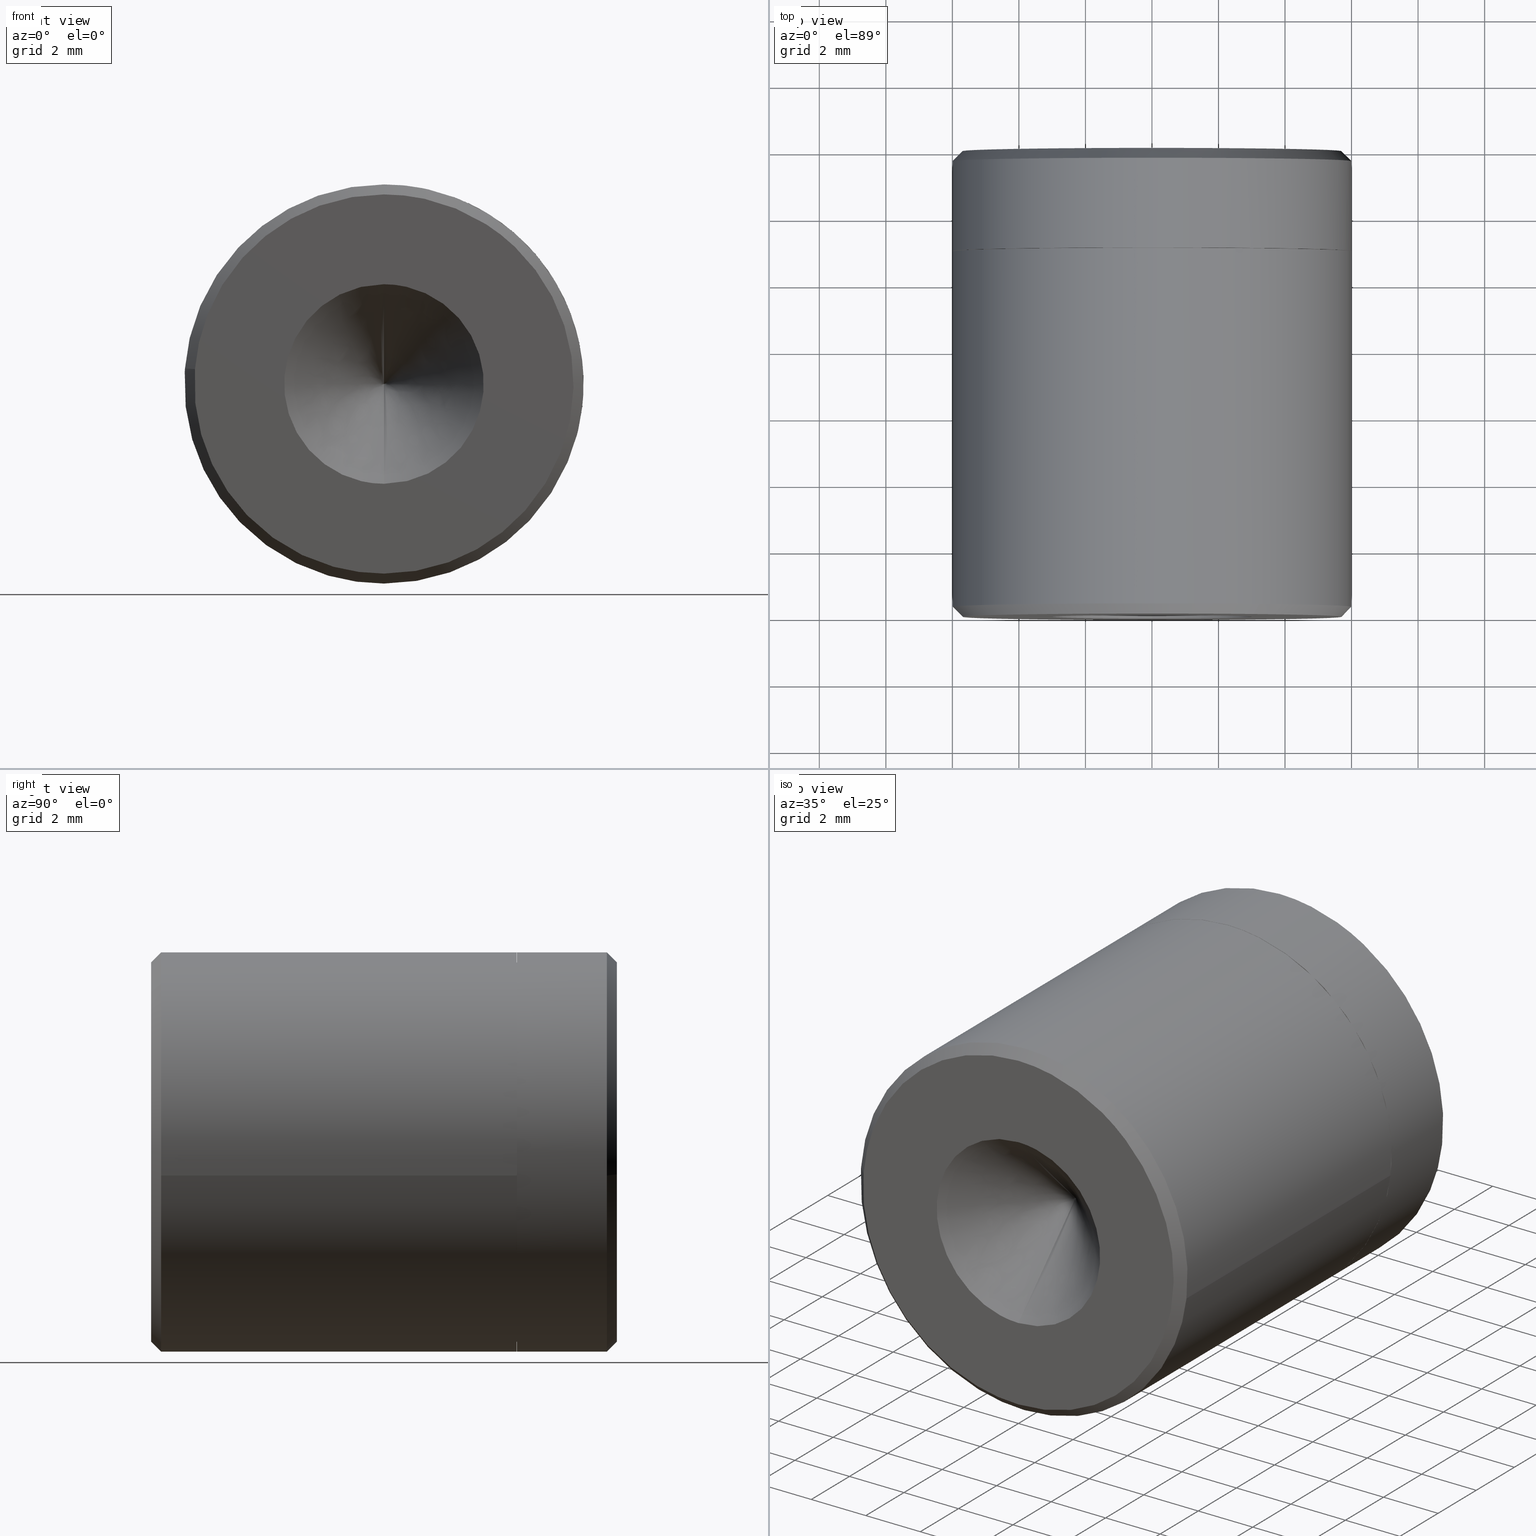
[diagram: canonical four-view strip — front | top / right | iso, engineering-drawing reading convention]
A machine part, canonical four-view strip (front | top / right | iso — engineering-drawing reading convention). The complete STEP part file that produces these views, byte-faithful:
ISO-10303-21;
HEADER;
/****************************************************************
 * Generated by software with PDE/Lib inside                    *
 * PDElib Version 4.4.1-0003, patched  Thursday August 19 11:58 *
 * International Technegroup Inc. (www.iti-oh.com)              *
 ****************************************************************/
FILE_DESCRIPTION((''),'2;1');
FILE_NAME('','2005-07-15T10:18:22',(''),(''),'','CADfix','');
FILE_SCHEMA(('AUTOMOTIVE_DESIGN'));
ENDSEC;
DATA;
#5=APPLICATION_CONTEXT('automotive design');
#6=APPLICATION_PROTOCOL_DEFINITION('Draft International Standard','automotive_design',1998,#5);
#7=PRODUCT_CONTEXT('None',#5,'mechanical');
#8=PRODUCT('body','','None',(#7));
#9=PRODUCT_RELATED_PRODUCT_CATEGORY('part','description',(#8));
#10=PRODUCT_DEFINITION_FORMATION('None','None',#8);
#11=PRODUCT_DEFINITION_CONTEXT('part definition',#5,'design');
#12=PRODUCT_DEFINITION('None','None',#10,#11);
#18=(NAMED_UNIT(*)PLANE_ANGLE_UNIT()SI_UNIT($,.RADIAN.));
#19=DIMENSIONAL_EXPONENTS(0.0,0.0,0.0,0.0,0.0,0.0,0.0);
#20=PLANE_ANGLE_MEASURE_WITH_UNIT(PLANE_ANGLE_MEASURE(0.017453292500000),#18);
#24=(CONVERSION_BASED_UNIT('DEGREE',#20)NAMED_UNIT(#19)PLANE_ANGLE_UNIT());
#28=(NAMED_UNIT(*)SI_UNIT($,.STERADIAN.)SOLID_ANGLE_UNIT());
#32=(LENGTH_UNIT()NAMED_UNIT(*)SI_UNIT(.MILLI.,.METRE.));
#34=UNCERTAINTY_MEASURE_WITH_UNIT(LENGTH_MEASURE(0.001000000000000),#32,'DISTANCE_ACCURACY_VALUE','');
#36=(GEOMETRIC_REPRESENTATION_CONTEXT(3)GLOBAL_UNCERTAINTY_ASSIGNED_CONTEXT((#34))GLOBAL_UNIT_ASSIGNED_CONTEXT((#24,#28,#32))REPRESENTATION_CONTEXT('None','None'));
#37=AXIS2_PLACEMENT_3D('',#38,#39,#40);
#38=CARTESIAN_POINT('',(0.0,0.0,0.0));
#39=DIRECTION('',(0.0,0.0,1.0));
#40=DIRECTION('',(1.0,0.0,0.0));
#41=ADVANCED_BREP_SHAPE_REPRESENTATION('',(#37,#1057),#36);
#42=PRODUCT_DEFINITION_SHAPE('','',#12);
#43=SHAPE_DEFINITION_REPRESENTATION(#42,#41);
#44=CARTESIAN_POINT('',(2.109708197967407,13.767504099999998,5.616862408803518));
#45=CARTESIAN_POINT('',(1.265936921281901,13.767504100000000,5.933785105154919));
#46=CARTESIAN_POINT('',(0.366291298257681,13.767504100000000,5.988809788665995));
#47=CARTESIAN_POINT('',(-5.622518490408318,13.767504100000002,6.355101086923678));
#48=CARTESIAN_POINT('',(-5.988809788665998,13.767504100000000,0.366291298257679));
#49=CARTESIAN_POINT('',(2.109708197967407,10.930812397499997,5.616862408803518));
#50=CARTESIAN_POINT('',(1.265936921281901,10.930812397500004,5.933785105154919));
#51=CARTESIAN_POINT('',(0.366291298257681,10.930812397500000,5.988809788665995));
#52=CARTESIAN_POINT('',(-5.622518490408318,10.930812397499999,6.355101086923678));
#53=CARTESIAN_POINT('',(-5.988809788665998,10.930812397500000,0.366291298257679));
#61=(BOUNDED_SURFACE()B_SPLINE_SURFACE(2,1,((#44,#49),(#45,#50),(#46,#51),(#47,#52),(#48,#53)),.UNSPECIFIED.,.F.,.F.,.U.)B_SPLINE_SURFACE_WITH_KNOTS((3,2,3),(2,2),(0.0,1.988225430761706,11.929352584570230),(0.0,2.836691702500005),.UNSPECIFIED.)GEOMETRIC_REPRESENTATION_ITEM()RATIONAL_B_SPLINE_SURFACE(((0.906274169979695,0.906274169979695),(0.941421356237309,0.941421356237309),(1.0,1.0),(0.707106781186548,0.707106781186548),(1.0,1.0)))REPRESENTATION_ITEM('')SURFACE());
#62=CARTESIAN_POINT('',(2.109705394561436,13.700003999997580,5.616862927662621));
#63=VERTEX_POINT('',#62);
#64=CARTESIAN_POINT('',(0.0,13.700004000000000,5.999999999999997));
#65=VERTEX_POINT('',#64);
#66=CARTESIAN_POINT('',(2.109705394561436,13.700003999997577,5.616862927662622));
#67=CARTESIAN_POINT('',(1.089642866699022,13.700004000000000,5.999999999999997));
#68=CARTESIAN_POINT('',(0.0,13.700004000000000,5.999999999999997));
#76=(BOUNDED_CURVE()B_SPLINE_CURVE(2,(#66,#67,#68),.UNSPECIFIED.,.F.,.U.)B_SPLINE_CURVE_WITH_KNOTS((3,3),(0.440284244788677,0.500000000000000),.UNSPECIFIED.)CURVE()GEOMETRIC_REPRESENTATION_ITEM()RATIONAL_B_SPLINE_CURVE((0.893499645059353,0.930038640969118,1.0))REPRESENTATION_ITEM(''));
#77=EDGE_CURVE('',#63,#65,#76,.T.);
#78=ORIENTED_EDGE('',*,*,#77,.T.);
#79=CARTESIAN_POINT('',(-5.988809289598700,13.700003999999559,0.366291267734830));
#80=VERTEX_POINT('',#79);
#81=CARTESIAN_POINT('',(0.0,13.700004000000000,5.999999999999997));
#82=CARTESIAN_POINT('',(-5.644236401428818,13.700004000000000,5.999999999999998));
#83=CARTESIAN_POINT('',(-5.988809289598700,13.700003999999563,0.366291267734830));
#91=(BOUNDED_CURVE()B_SPLINE_CURVE(2,(#81,#82,#83),.UNSPECIFIED.,.F.,.U.)B_SPLINE_CURVE_WITH_KNOTS((3,3),(0.500000000000000,0.739332962241805),.UNSPECIFIED.)CURVE()GEOMETRIC_REPRESENTATION_ITEM()RATIONAL_B_SPLINE_CURVE((1.0,0.719603993283357,0.976072041672852))REPRESENTATION_ITEM(''));
#92=EDGE_CURVE('',#65,#80,#91,.T.);
#93=ORIENTED_EDGE('',*,*,#92,.T.);
#94=CARTESIAN_POINT('',(-5.988809419119264,11.0,0.366289150076982));
#95=VERTEX_POINT('',#94);
#96=CARTESIAN_POINT('',(-5.988809289598700,13.700003999999559,0.366291267734830));
#97=CARTESIAN_POINT('',(-5.988809419119264,11.0,0.366289150076982));
#98=QUASI_UNIFORM_CURVE('',1,(#96,#97),.UNSPECIFIED.,.F.,.U.);
#99=EDGE_CURVE('',#80,#95,#98,.T.);
#100=ORIENTED_EDGE('',*,*,#99,.T.);
#101=CARTESIAN_POINT('',(0.0,11.0,5.999999999999997));
#102=VERTEX_POINT('',#101);
#103=CARTESIAN_POINT('',(0.0,11.0,5.999999999999997));
#104=CARTESIAN_POINT('',(-5.644238400978692,11.0,5.999999999999998));
#105=CARTESIAN_POINT('',(-5.988809419119264,11.000000000000002,0.366289150076982));
#113=(BOUNDED_CURVE()B_SPLINE_CURVE(2,(#103,#104,#105),.UNSPECIFIED.,.F.,.U.)B_SPLINE_CURVE_WITH_KNOTS((3,3),(0.500000000000000,0.739333023254904),.UNSPECIFIED.)CURVE()GEOMETRIC_REPRESENTATION_ITEM()RATIONAL_B_SPLINE_CURVE((1.0,0.719603921802065,0.976072172435572))REPRESENTATION_ITEM(''));
#114=EDGE_CURVE('',#102,#95,#113,.T.);
#115=ORIENTED_EDGE('',*,*,#114,.F.);
#116=CARTESIAN_POINT('',(2.109705874092362,11.0,5.616862747550018));
#117=VERTEX_POINT('',#116);
#118=CARTESIAN_POINT('',(2.109705874092362,10.999999999999998,5.616862747550018));
#119=CARTESIAN_POINT('',(1.089643131266459,11.000000000000004,5.999999999999998));
#120=CARTESIAN_POINT('',(0.0,11.0,5.999999999999997));
#128=(BOUNDED_CURVE()B_SPLINE_CURVE(2,(#118,#119,#120),.UNSPECIFIED.,.F.,.U.)B_SPLINE_CURVE_WITH_KNOTS((3,3),(0.440284231303951,0.500000000000000),.UNSPECIFIED.)CURVE()GEOMETRIC_REPRESENTATION_ITEM()RATIONAL_B_SPLINE_CURVE((0.893499628557232,0.930038625170779,1.0))REPRESENTATION_ITEM(''));
#129=EDGE_CURVE('',#117,#102,#128,.T.);
#130=ORIENTED_EDGE('',*,*,#129,.F.);
#131=CARTESIAN_POINT('',(2.109705394561436,13.700003999997580,5.616862927662621));
#132=CARTESIAN_POINT('',(2.109705874092362,11.0,5.616862747550018));
#133=QUASI_UNIFORM_CURVE('',1,(#131,#132),.UNSPECIFIED.,.F.,.U.);
#134=EDGE_CURVE('',#63,#117,#133,.T.);
#135=ORIENTED_EDGE('',*,*,#134,.F.);
#136=EDGE_LOOP('',(#78,#93,#100,#115,#130,#135));
#137=FACE_OUTER_BOUND('',#136,.T.);
#138=ADVANCED_FACE('',(#137),#61,.T.);
#139=CARTESIAN_POINT('',(-5.988809788665998,13.767504100000000,0.366291298257679));
#140=CARTESIAN_POINT('',(-6.355101086923679,13.767504100000002,-5.622518490408319));
#141=CARTESIAN_POINT('',(-0.366291298257681,13.767504100000000,-5.988809788666001));
#142=CARTESIAN_POINT('',(5.622518490408318,13.767504100000002,-6.355101086923682));
#143=CARTESIAN_POINT('',(5.988809788665998,13.767504100000000,-0.366291298257684));
#144=CARTESIAN_POINT('',(6.259424380453273,13.767504100000004,4.058218167187970));
#145=CARTESIAN_POINT('',(2.109708197967407,13.767504099999998,5.616862408803518));
#146=CARTESIAN_POINT('',(-5.988809788665998,10.930812397500000,0.366291298257679));
#147=CARTESIAN_POINT('',(-6.355101086923679,10.930812397499999,-5.622518490408319));
#148=CARTESIAN_POINT('',(-0.366291298257681,10.930812397500000,-5.988809788666001));
#149=CARTESIAN_POINT('',(5.622518490408318,10.930812397499999,-6.355101086923682));
#150=CARTESIAN_POINT('',(5.988809788665998,10.930812397500000,-0.366291298257684));
#151=CARTESIAN_POINT('',(6.259424380453273,10.930812397499999,4.058218167187970));
#152=CARTESIAN_POINT('',(2.109708197967407,10.930812397499997,5.616862408803518));
#160=(BOUNDED_SURFACE()B_SPLINE_SURFACE(2,1,((#139,#146),(#140,#147),(#141,#148),(#142,#149),(#143,#150),(#144,#151),(#145,#152)),.UNSPECIFIED.,.F.,.F.,.U.)B_SPLINE_SURFACE_WITH_KNOTS((3,2,2,3),(2,2),(0.0,9.941127153808528,19.882254307617060,27.835156030663882),(0.0,2.836691702500005),.UNSPECIFIED.)GEOMETRIC_REPRESENTATION_ITEM()RATIONAL_B_SPLINE_SURFACE(((1.0,1.0),(0.707106781186548,0.707106781186548),(1.0,1.0),(0.707106781186548,0.707106781186548),(1.0,1.0),(0.765685424949238,0.765685424949238),(0.906274169979695,0.906274169979695)))REPRESENTATION_ITEM('')SURFACE());
#161=CARTESIAN_POINT('',(5.958057158182076,13.700003999998820,-0.708205407949931));
#162=VERTEX_POINT('',#161);
#163=CARTESIAN_POINT('',(5.958057158182077,13.700003999998822,-0.708205407949931));
#164=CARTESIAN_POINT('',(6.000000000000001,13.700004000000000,-0.355344717920800));
#165=CARTESIAN_POINT('',(6.0,13.700004000000000,-2.449215E-015));
#166=CARTESIAN_POINT('',(6.0,13.700004000000007,4.155659650811663));
#167=CARTESIAN_POINT('',(2.109705394561436,13.700003999997577,5.616862927662622));
#175=(BOUNDED_CURVE()B_SPLINE_CURVE(2,(#163,#164,#165,#166,#167),.UNSPECIFIED.,.F.,.U.)B_SPLINE_CURVE_WITH_KNOTS((3,2,3),(0.229562473515120,0.250000000000000,0.440284244788677),.UNSPECIFIED.)CURVE()GEOMETRIC_REPRESENTATION_ITEM()RATIONAL_B_SPLINE_CURVE((0.956026754186858,0.976055948333033,1.0,0.777068140217430,0.893499645059353))REPRESENTATION_ITEM(''));
#176=EDGE_CURVE('',#162,#63,#175,.T.);
#177=ORIENTED_EDGE('',*,*,#176,.T.);
#178=ORIENTED_EDGE('',*,*,#134,.T.);
#179=CARTESIAN_POINT('',(0.0,11.0,-6.000000000000003));
#180=VERTEX_POINT('',#179);
#181=CARTESIAN_POINT('',(0.0,11.0,-6.000000000000003));
#182=CARTESIAN_POINT('',(6.0,11.0,-6.000000000000003));
#183=CARTESIAN_POINT('',(6.0,11.0,-2.449215E-015));
#184=CARTESIAN_POINT('',(6.0,11.0,4.155659271828293));
#185=CARTESIAN_POINT('',(2.109705874092362,10.999999999999998,5.616862747550018));
#193=(BOUNDED_CURVE()B_SPLINE_CURVE(2,(#181,#182,#183,#184,#185),.UNSPECIFIED.,.F.,.U.)B_SPLINE_CURVE_WITH_KNOTS((3,2,3),(0.0,0.250000000000000,0.440284231303951),.UNSPECIFIED.)CURVE()GEOMETRIC_REPRESENTATION_ITEM()RATIONAL_B_SPLINE_CURVE((1.0,0.707106781186548,1.0,0.777068156015769,0.893499628557232))REPRESENTATION_ITEM(''));
#194=EDGE_CURVE('',#180,#117,#193,.T.);
#195=ORIENTED_EDGE('',*,*,#194,.F.);
#196=CARTESIAN_POINT('',(-5.988809419119264,11.000000000000002,0.366289150076982));
#197=CARTESIAN_POINT('',(-5.999999999999999,10.999999999999996,0.183315517994584));
#198=CARTESIAN_POINT('',(-6.0,11.0,-2.449215E-015));
#199=CARTESIAN_POINT('',(-6.0,11.0,-6.000000000000003));
#200=CARTESIAN_POINT('',(0.0,11.0,-6.000000000000003));
#208=(BOUNDED_CURVE()B_SPLINE_CURVE(2,(#196,#197,#198,#199,#200),.UNSPECIFIED.,.F.,.U.)B_SPLINE_CURVE_WITH_KNOTS((3,2,3),(0.739333023254904,0.750000000000000,1.0),.UNSPECIFIED.)CURVE()GEOMETRIC_REPRESENTATION_ITEM()RATIONAL_B_SPLINE_CURVE((0.976072172435572,0.987502859384482,1.0,0.707106781186548,1.0))REPRESENTATION_ITEM(''));
#209=EDGE_CURVE('',#95,#180,#208,.T.);
#210=ORIENTED_EDGE('',*,*,#209,.F.);
#211=ORIENTED_EDGE('',*,*,#99,.F.);
#212=CARTESIAN_POINT('',(0.0,13.700004000000000,-6.000000000000003));
#213=VERTEX_POINT('',#212);
#214=CARTESIAN_POINT('',(-5.988809289598700,13.700003999999558,0.366291267734829));
#215=CARTESIAN_POINT('',(-6.0,13.700004000000003,0.183316579794357));
#216=CARTESIAN_POINT('',(-6.0,13.700004000000000,-2.449215E-015));
#217=CARTESIAN_POINT('',(-6.0,13.700004000000000,-6.000000000000003));
#218=CARTESIAN_POINT('',(0.0,13.700004000000000,-6.000000000000003));
#226=(BOUNDED_CURVE()B_SPLINE_CURVE(2,(#214,#215,#216,#217,#218),.UNSPECIFIED.,.F.,.U.)B_SPLINE_CURVE_WITH_KNOTS((3,2,3),(0.739332962241806,0.750000000000000,1.0),.UNSPECIFIED.)CURVE()GEOMETRIC_REPRESENTATION_ITEM()RATIONAL_B_SPLINE_CURVE((0.976072041672854,0.987502787903192,1.0,0.707106781186548,1.0))REPRESENTATION_ITEM(''));
#227=EDGE_CURVE('',#80,#213,#226,.T.);
#228=ORIENTED_EDGE('',*,*,#227,.T.);
#229=CARTESIAN_POINT('',(0.0,13.700004000000000,-6.000000000000003));
#230=CARTESIAN_POINT('',(5.329047155691565,13.700004000000007,-6.000000000000003));
#231=CARTESIAN_POINT('',(5.958057158182076,13.700003999998819,-0.708205407949931));
#239=(BOUNDED_CURVE()B_SPLINE_CURVE(2,(#229,#230,#231),.UNSPECIFIED.,.F.,.U.)B_SPLINE_CURVE_WITH_KNOTS((3,3),(0.0,0.229562473515120),.UNSPECIFIED.)CURVE()GEOMETRIC_REPRESENTATION_ITEM()RATIONAL_B_SPLINE_CURVE((1.0,0.731050832853514,0.956026754186859))REPRESENTATION_ITEM(''));
#240=EDGE_CURVE('',#213,#162,#239,.T.);
#241=ORIENTED_EDGE('',*,*,#240,.T.);
#242=EDGE_LOOP('',(#177,#178,#195,#210,#211,#228,#241));
#243=FACE_OUTER_BOUND('',#242,.T.);
#244=ADVANCED_FACE('',(#243),#160,.T.);
#245=CARTESIAN_POINT('',(5.652705710990393,14.007499900000003,-0.671909759798508));
#246=CARTESIAN_POINT('',(5.671935479643869,14.007499900000006,-0.510131750916592));
#247=CARTESIAN_POINT('',(5.681881316928295,14.007499899999999,-0.347518748727422));
#248=CARTESIAN_POINT('',(6.029400065655715,14.007499900000003,5.334362568200873));
#249=CARTESIAN_POINT('',(0.347518748727420,14.007499899999999,5.681881316928292));
#250=CARTESIAN_POINT('',(-5.334362568200875,14.007499900000003,6.029400065655713));
#251=CARTESIAN_POINT('',(-5.681881316928295,14.007499899999999,0.347518748727417));
#252=CARTESIAN_POINT('',(5.965690944361788,13.692316602499998,-0.709112799144104));
#253=CARTESIAN_POINT('',(5.985985448017829,13.692316602499995,-0.538377287350650));
#254=CARTESIAN_POINT('',(5.996481977371273,13.692316602500000,-0.366760549421187));
#255=CARTESIAN_POINT('',(6.363242526792458,13.692316602499998,5.629721427950086));
#256=CARTESIAN_POINT('',(0.366760549421185,13.692316602500000,5.996481977371270));
#257=CARTESIAN_POINT('',(-5.629721427950088,13.692316602499998,6.363242526792456));
#258=CARTESIAN_POINT('',(-5.996481977371273,13.692316602500000,0.366760549421183));
#266=(BOUNDED_SURFACE()B_SPLINE_SURFACE(2,1,((#245,#252),(#246,#253),(#247,#254),(#248,#255),(#249,#256),(#250,#257),(#251,#258)),.UNSPECIFIED.,.F.,.F.,.U.)B_SPLINE_SURFACE_WITH_KNOTS((3,2,2,3),(2,2),(0.0,0.398154504258166,10.352017110712310,20.305879717166459),(0.0,0.445740208493775),.UNSPECIFIED.)GEOMETRIC_REPRESENTATION_ITEM()RATIONAL_B_SPLINE_SURFACE(((0.977505800795127,0.977505800795127),(0.988284271247462,0.988284271247462),(1.0,1.0),(0.707106781186548,0.707106781186548),(1.0,1.0),(0.707106781186548,0.707106781186548),(1.0,1.0)))REPRESENTATION_ITEM('')SURFACE());
#267=ORIENTED_EDGE('',*,*,#176,.F.);
#268=CARTESIAN_POINT('',(5.660153307263389,13.999999999999719,-0.672795019511462));
#269=VERTEX_POINT('',#268);
#270=CARTESIAN_POINT('',(5.660153307263389,13.999999999999719,-0.672795019511462));
#271=CARTESIAN_POINT('',(5.958057158182076,13.700003999998820,-0.708205407949931));
#272=QUASI_UNIFORM_CURVE('',1,(#270,#271),.UNSPECIFIED.,.F.,.U.);
#273=EDGE_CURVE('',#269,#162,#272,.T.);
#274=ORIENTED_EDGE('',*,*,#273,.F.);
#275=CARTESIAN_POINT('',(0.0,14.0,5.699998999999997));
#276=VERTEX_POINT('',#275);
#277=CARTESIAN_POINT('',(5.660153307263389,13.999999999999725,-0.672795019511462));
#278=CARTESIAN_POINT('',(5.699999000000000,14.000000000000002,-0.337577422793932));
#279=CARTESIAN_POINT('',(5.699999000000000,14.0,-2.449215E-015));
#280=CARTESIAN_POINT('',(5.699999000000000,13.999999999999998,5.699998999999997));
#281=CARTESIAN_POINT('',(0.0,14.0,5.699998999999997));
#289=(BOUNDED_CURVE()B_SPLINE_CURVE(2,(#277,#278,#279,#280,#281),.UNSPECIFIED.,.F.,.U.)B_SPLINE_CURVE_WITH_KNOTS((3,2,3),(0.229562473515517,0.250000000000000,0.500000000000000),.UNSPECIFIED.)CURVE()GEOMETRIC_REPRESENTATION_ITEM()RATIONAL_B_SPLINE_CURVE((0.956026754187635,0.976055948333498,1.0,0.707106781186548,1.0))REPRESENTATION_ITEM(''));
#290=EDGE_CURVE('',#269,#276,#289,.T.);
#291=ORIENTED_EDGE('',*,*,#290,.T.);
#292=CARTESIAN_POINT('',(-5.689367352869963,13.999999999999771,0.347976614301856));
#293=VERTEX_POINT('',#292);
#294=CARTESIAN_POINT('',(0.0,14.0,5.699998999999997));
#295=CARTESIAN_POINT('',(-5.362023640653177,13.999999999999993,5.699998999999997));
#296=CARTESIAN_POINT('',(-5.689367352869963,13.999999999999771,0.347976614301856));
#304=(BOUNDED_CURVE()B_SPLINE_CURVE(2,(#294,#295,#296),.UNSPECIFIED.,.F.,.U.)B_SPLINE_CURVE_WITH_KNOTS((3,3),(0.500000000000000,0.739332962241865),.UNSPECIFIED.)CURVE()GEOMETRIC_REPRESENTATION_ITEM()RATIONAL_B_SPLINE_CURVE((1.0,0.719603993283287,0.976072041672980))REPRESENTATION_ITEM(''));
#305=EDGE_CURVE('',#276,#293,#304,.T.);
#306=ORIENTED_EDGE('',*,*,#305,.T.);
#307=CARTESIAN_POINT('',(-5.689367352869963,13.999999999999771,0.347976614301856));
#308=CARTESIAN_POINT('',(-5.988809289598700,13.700003999999559,0.366291267734830));
#309=QUASI_UNIFORM_CURVE('',1,(#307,#308),.UNSPECIFIED.,.F.,.U.);
#310=EDGE_CURVE('',#293,#80,#309,.T.);
#311=ORIENTED_EDGE('',*,*,#310,.T.);
#312=ORIENTED_EDGE('',*,*,#92,.F.);
#313=ORIENTED_EDGE('',*,*,#77,.F.);
#314=EDGE_LOOP('',(#267,#274,#291,#306,#311,#312,#313));
#315=FACE_OUTER_BOUND('',#314,.T.);
#316=ADVANCED_FACE('',(#315),#266,.T.);
#317=CARTESIAN_POINT('',(-5.681881316928295,14.007499899999999,0.347518748727417));
#318=CARTESIAN_POINT('',(-6.029400065655715,14.007499900000003,-5.334362568200878));
#319=CARTESIAN_POINT('',(-0.347518748727420,14.007499899999999,-5.681881316928298));
#320=CARTESIAN_POINT('',(5.018185418021771,14.007499900000012,-6.010061842719050));
#321=CARTESIAN_POINT('',(5.652705710990393,14.007499900000003,-0.671909759798508));
#322=CARTESIAN_POINT('',(-5.996481977371273,13.692316602500000,0.366760549421183));
#323=CARTESIAN_POINT('',(-6.363242526792458,13.692316602499998,-5.629721427950091));
#324=CARTESIAN_POINT('',(-0.366760549421185,13.692316602500000,-5.996481977371276));
#325=CARTESIAN_POINT('',(5.296037833212385,13.692316602499996,-6.342833563837070));
#326=CARTESIAN_POINT('',(5.965690944361788,13.692316602499998,-0.709112799144104));
#334=(BOUNDED_SURFACE()B_SPLINE_SURFACE(2,1,((#317,#322),(#318,#323),(#319,#324),(#320,#325),(#321,#326)),.UNSPECIFIED.,.F.,.F.,.U.)B_SPLINE_SURFACE_WITH_KNOTS((3,2,3),(2,2),(0.0,9.953862606454145,19.509570708650120),(0.0,0.445740208493775),.UNSPECIFIED.)GEOMETRIC_REPRESENTATION_ITEM()RATIONAL_B_SPLINE_SURFACE(((1.0,1.0),(0.707106781186548,0.707106781186548),(1.0,1.0),(0.718822509939086,0.718822509939086),(0.977505800795127,0.977505800795127)))REPRESENTATION_ITEM('')SURFACE());
#335=ORIENTED_EDGE('',*,*,#240,.F.);
#336=ORIENTED_EDGE('',*,*,#227,.F.);
#337=ORIENTED_EDGE('',*,*,#310,.F.);
#338=CARTESIAN_POINT('',(0.0,14.0,-5.699999000000003));
#339=VERTEX_POINT('',#338);
#340=CARTESIAN_POINT('',(-5.689367352869963,13.999999999999774,0.347976614301856));
#341=CARTESIAN_POINT('',(-5.699999000000000,14.000000000000005,0.174150720250896));
#342=CARTESIAN_POINT('',(-5.699999000000000,14.0,-2.449215E-015));
#343=CARTESIAN_POINT('',(-5.699999000000000,13.999999999999998,-5.699999000000003));
#344=CARTESIAN_POINT('',(0.0,14.0,-5.699999000000003));
#352=(BOUNDED_CURVE()B_SPLINE_CURVE(2,(#340,#341,#342,#343,#344),.UNSPECIFIED.,.F.,.U.)B_SPLINE_CURVE_WITH_KNOTS((3,2,3),(0.739332962241865,0.750000000000000,1.0),.UNSPECIFIED.)CURVE()GEOMETRIC_REPRESENTATION_ITEM()RATIONAL_B_SPLINE_CURVE((0.976072041672981,0.987502787903261,1.0,0.707106781186548,1.0))REPRESENTATION_ITEM(''));
#353=EDGE_CURVE('',#293,#339,#352,.T.);
#354=ORIENTED_EDGE('',*,*,#353,.T.);
#355=CARTESIAN_POINT('',(0.0,14.0,-5.699999000000003));
#356=CARTESIAN_POINT('',(5.062593909744418,14.000000000000005,-5.699999000000002));
#357=CARTESIAN_POINT('',(5.660153307263389,13.999999999999721,-0.672795019511462));
#365=(BOUNDED_CURVE()B_SPLINE_CURVE(2,(#355,#356,#357),.UNSPECIFIED.,.F.,.U.)B_SPLINE_CURVE_WITH_KNOTS((3,3),(0.0,0.229562473515517),.UNSPECIFIED.)CURVE()GEOMETRIC_REPRESENTATION_ITEM()RATIONAL_B_SPLINE_CURVE((1.0,0.731050832853050,0.956026754187636))REPRESENTATION_ITEM(''));
#366=EDGE_CURVE('',#339,#269,#365,.T.);
#367=ORIENTED_EDGE('',*,*,#366,.T.);
#368=ORIENTED_EDGE('',*,*,#273,.T.);
#369=EDGE_LOOP('',(#335,#336,#337,#354,#367,#368));
#370=FACE_OUTER_BOUND('',#369,.T.);
#371=ADVANCED_FACE('',(#370),#334,.T.);
#372=CARTESIAN_POINT('',(5.660155293282426,11.000250000000007,-0.672795255577760));
#373=CARTESIAN_POINT('',(5.679410404444667,11.000249999999998,-0.510804042851204));
#374=CARTESIAN_POINT('',(5.689369349139438,11.000249999999999,-0.347976736397227));
#375=CARTESIAN_POINT('',(6.037346085536663,11.000250000000003,5.341392612742212));
#376=CARTESIAN_POINT('',(0.347976736397224,11.000249999999999,5.689369349139436));
#377=CARTESIAN_POINT('',(-5.341392612742215,11.000250000000003,6.037346085536661));
#378=CARTESIAN_POINT('',(-5.689369349139438,11.000249999999999,0.347976736397222));
#379=CARTESIAN_POINT('',(5.660155293282426,10.989743750000001,-0.672795255577760));
#380=CARTESIAN_POINT('',(5.679410404444667,10.989743750000001,-0.510804042851204));
#381=CARTESIAN_POINT('',(5.689369349139438,10.989743750000001,-0.347976736397227));
#382=CARTESIAN_POINT('',(6.037346085536663,10.989743749999999,5.341392612742212));
#383=CARTESIAN_POINT('',(0.347976736397224,10.989743750000001,5.689369349139436));
#384=CARTESIAN_POINT('',(-5.341392612742215,10.989743749999999,6.037346085536661));
#385=CARTESIAN_POINT('',(-5.689369349139438,10.989743750000001,0.347976736397222));
#393=(BOUNDED_SURFACE()B_SPLINE_SURFACE(2,1,((#372,#379),(#373,#380),(#374,#381),(#375,#382),(#376,#383),(#377,#384),(#378,#385)),.UNSPECIFIED.,.F.,.F.,.U.)B_SPLINE_SURFACE_WITH_KNOTS((3,2,2,3),(2,2),(0.0,0.377762835158433,9.821833714119247,19.265904593080059),(0.0,0.010506250000003),.UNSPECIFIED.)GEOMETRIC_REPRESENTATION_ITEM()RATIONAL_B_SPLINE_SURFACE(((0.977505800795127,0.977505800795127),(0.988284271247462,0.988284271247462),(1.0,1.0),(0.707106781186548,0.707106781186548),(1.0,1.0),(0.707106781186548,0.707106781186548),(1.0,1.0)))REPRESENTATION_ITEM('')SURFACE());
#394=CARTESIAN_POINT('',(5.660155504204231,11.000000000001920,-0.672793481110175));
#395=VERTEX_POINT('',#394);
#396=CARTESIAN_POINT('',(0.0,11.0,5.700000999999997));
#397=VERTEX_POINT('',#396);
#398=CARTESIAN_POINT('',(5.660155504204231,11.000000000001924,-0.672793481110175));
#399=CARTESIAN_POINT('',(5.700000999999999,10.999999999999998,-0.337576644626536));
#400=CARTESIAN_POINT('',(5.700000999999999,11.0,-2.449215E-015));
#401=CARTESIAN_POINT('',(5.700000999999999,11.0,5.700000999999997));
#402=CARTESIAN_POINT('',(0.0,11.0,5.700000999999997));
#410=(BOUNDED_CURVE()B_SPLINE_CURVE(2,(#398,#399,#400,#401,#402),.UNSPECIFIED.,.F.,.U.)B_SPLINE_CURVE_WITH_KNOTS((3,2,3),(0.229562526498430,0.250000000000000,0.500000000000000),.UNSPECIFIED.)CURVE()GEOMETRIC_REPRESENTATION_ITEM()RATIONAL_B_SPLINE_CURVE((0.956026858036340,0.976056010406842,1.0,0.707106781186548,1.0))REPRESENTATION_ITEM(''));
#411=EDGE_CURVE('',#395,#397,#410,.T.);
#412=ORIENTED_EDGE('',*,*,#411,.T.);
#413=CARTESIAN_POINT('',(-5.689369448078955,11.000000000001490,0.347975118742901));
#414=VERTEX_POINT('',#413);
#415=CARTESIAN_POINT('',(0.0,11.0,5.700000999999997));
#416=CARTESIAN_POINT('',(-5.362027049498555,11.000000000000002,5.700000999999999));
#417=CARTESIAN_POINT('',(-5.689369448078955,11.000000000001483,0.347975118742901));
#425=(BOUNDED_CURVE()B_SPLINE_CURVE(2,(#415,#416,#417),.UNSPECIFIED.,.F.,.U.)B_SPLINE_CURVE_WITH_KNOTS((3,3),(0.500000000000000,0.739333011302076),.UNSPECIFIED.)CURVE()GEOMETRIC_REPRESENTATION_ITEM()RATIONAL_B_SPLINE_CURVE((1.0,0.719603935805675,0.976072146818373))REPRESENTATION_ITEM(''));
#426=EDGE_CURVE('',#397,#414,#425,.T.);
#427=ORIENTED_EDGE('',*,*,#426,.T.);
#428=CARTESIAN_POINT('',(-5.689369446885911,10.990000000000000,0.347975138249162));
#429=VERTEX_POINT('',#428);
#430=CARTESIAN_POINT('',(-5.689369448078955,11.000000000001490,0.347975118742901));
#431=CARTESIAN_POINT('',(-5.689369446885911,10.990000000000000,0.347975138249162));
#432=QUASI_UNIFORM_CURVE('',1,(#430,#431),.UNSPECIFIED.,.F.,.U.);
#433=EDGE_CURVE('',#414,#429,#432,.T.);
#434=ORIENTED_EDGE('',*,*,#433,.T.);
#435=CARTESIAN_POINT('',(0.0,10.990000000000000,5.700000999999997));
#436=VERTEX_POINT('',#435);
#437=CARTESIAN_POINT('',(0.0,10.990000000000000,5.700000999999997));
#438=CARTESIAN_POINT('',(-5.362027031080247,10.990000000000000,5.700000999999996));
#439=CARTESIAN_POINT('',(-5.689369446885911,10.990000000000000,0.347975138249162));
#447=(BOUNDED_CURVE()B_SPLINE_CURVE(2,(#437,#438,#439),.UNSPECIFIED.,.F.,.U.)B_SPLINE_CURVE_WITH_KNOTS((3,3),(0.500000000000000,0.739333010710491),.UNSPECIFIED.)CURVE()GEOMETRIC_REPRESENTATION_ITEM()RATIONAL_B_SPLINE_CURVE((1.0,0.719603936498759,0.976072145550494))REPRESENTATION_ITEM(''));
#448=EDGE_CURVE('',#436,#429,#447,.T.);
#449=ORIENTED_EDGE('',*,*,#448,.F.);
#450=CARTESIAN_POINT('',(5.660155501661102,10.990000000000000,-0.672793502505368));
#451=VERTEX_POINT('',#450);
#452=CARTESIAN_POINT('',(5.660155501661102,10.990000000000004,-0.672793502505368));
#453=CARTESIAN_POINT('',(5.700000999999999,10.990000000000004,-0.337576655437225));
#454=CARTESIAN_POINT('',(5.700000999999999,10.990000000000000,-2.449215E-015));
#455=CARTESIAN_POINT('',(5.700000999999999,10.990000000000000,5.700000999999997));
#456=CARTESIAN_POINT('',(0.0,10.990000000000000,5.700000999999997));
#464=(BOUNDED_CURVE()B_SPLINE_CURVE(2,(#452,#453,#454,#455,#456),.UNSPECIFIED.,.F.,.U.)B_SPLINE_CURVE_WITH_KNOTS((3,2,3),(0.229562525859603,0.250000000000000,0.500000000000000),.UNSPECIFIED.)CURVE()GEOMETRIC_REPRESENTATION_ITEM()RATIONAL_B_SPLINE_CURVE((0.956026856784213,0.976056009658410,1.0,0.707106781186548,1.0))REPRESENTATION_ITEM(''));
#465=EDGE_CURVE('',#451,#436,#464,.T.);
#466=ORIENTED_EDGE('',*,*,#465,.F.);
#467=CARTESIAN_POINT('',(5.660155504204231,11.000000000001920,-0.672793481110175));
#468=CARTESIAN_POINT('',(5.660155501661102,10.990000000000000,-0.672793502505368));
#469=QUASI_UNIFORM_CURVE('',1,(#467,#468),.UNSPECIFIED.,.F.,.U.);
#470=EDGE_CURVE('',#395,#451,#469,.T.);
#471=ORIENTED_EDGE('',*,*,#470,.F.);
#472=EDGE_LOOP('',(#412,#427,#434,#449,#466,#471));
#473=FACE_OUTER_BOUND('',#472,.T.);
#474=ADVANCED_FACE('',(#473),#393,.T.);
#475=CARTESIAN_POINT('',(-5.689369349139438,11.000249999999999,0.347976736397222));
#476=CARTESIAN_POINT('',(-6.037346085536663,11.000250000000003,-5.341392612742216));
#477=CARTESIAN_POINT('',(-0.347976736397224,11.000249999999999,-5.689369349139441));
#478=CARTESIAN_POINT('',(5.024798779328647,11.000250000000001,-6.017982377161605));
#479=CARTESIAN_POINT('',(5.660155293282426,11.000250000000007,-0.672795255577760));
#480=CARTESIAN_POINT('',(-5.689369349139438,10.989743750000001,0.347976736397222));
#481=CARTESIAN_POINT('',(-6.037346085536663,10.989743749999999,-5.341392612742216));
#482=CARTESIAN_POINT('',(-0.347976736397224,10.989743750000001,-5.689369349139441));
#483=CARTESIAN_POINT('',(5.024798779328647,10.989743749999999,-6.017982377161605));
#484=CARTESIAN_POINT('',(5.660155293282426,10.989743750000001,-0.672795255577760));
#492=(BOUNDED_SURFACE()B_SPLINE_SURFACE(2,1,((#475,#480),(#476,#481),(#477,#482),(#478,#483),(#479,#484)),.UNSPECIFIED.,.F.,.F.,.U.)B_SPLINE_SURFACE_WITH_KNOTS((3,2,3),(2,2),(0.0,9.444070878960813,18.510378922763191),(0.0,0.010506250000003),.UNSPECIFIED.)GEOMETRIC_REPRESENTATION_ITEM()RATIONAL_B_SPLINE_SURFACE(((1.0,1.0),(0.707106781186548,0.707106781186548),(1.0,1.0),(0.718822509939086,0.718822509939086),(0.977505800795127,0.977505800795127)))REPRESENTATION_ITEM('')SURFACE());
#493=CARTESIAN_POINT('',(0.0,11.0,-5.700001000000002));
#494=VERTEX_POINT('',#493);
#495=CARTESIAN_POINT('',(0.0,11.0,-5.700001000000002));
#496=CARTESIAN_POINT('',(5.062597284402099,11.0,-5.700001000000001));
#497=CARTESIAN_POINT('',(5.660155504204231,11.000000000001924,-0.672793481110175));
#505=(BOUNDED_CURVE()B_SPLINE_CURVE(2,(#495,#496,#497),.UNSPECIFIED.,.F.,.U.)B_SPLINE_CURVE_WITH_KNOTS((3,3),(0.0,0.229562526498430),.UNSPECIFIED.)CURVE()GEOMETRIC_REPRESENTATION_ITEM()RATIONAL_B_SPLINE_CURVE((1.0,0.731050770779706,0.956026858036340))REPRESENTATION_ITEM(''));
#506=EDGE_CURVE('',#494,#395,#505,.T.);
#507=ORIENTED_EDGE('',*,*,#506,.T.);
#508=ORIENTED_EDGE('',*,*,#470,.T.);
#509=CARTESIAN_POINT('',(0.0,10.990000000000000,-5.700001000000002));
#510=VERTEX_POINT('',#509);
#511=CARTESIAN_POINT('',(0.0,10.990000000000000,-5.700001000000002));
#512=CARTESIAN_POINT('',(5.062597265130944,10.990000000000000,-5.700001000000002));
#513=CARTESIAN_POINT('',(5.660155501661102,10.990000000000004,-0.672793502505368));
#521=(BOUNDED_CURVE()B_SPLINE_CURVE(2,(#511,#512,#513),.UNSPECIFIED.,.F.,.U.)B_SPLINE_CURVE_WITH_KNOTS((3,3),(0.0,0.229562525859603),.UNSPECIFIED.)CURVE()GEOMETRIC_REPRESENTATION_ITEM()RATIONAL_B_SPLINE_CURVE((1.0,0.731050771528137,0.956026856784213))REPRESENTATION_ITEM(''));
#522=EDGE_CURVE('',#510,#451,#521,.T.);
#523=ORIENTED_EDGE('',*,*,#522,.F.);
#524=CARTESIAN_POINT('',(-5.689369446885911,10.990000000000000,0.347975138249162));
#525=CARTESIAN_POINT('',(-5.700000999999999,10.989999999999997,0.174149980040180));
#526=CARTESIAN_POINT('',(-5.700000999999999,10.990000000000000,-2.449215E-015));
#527=CARTESIAN_POINT('',(-5.700000999999999,10.990000000000000,-5.700001000000002));
#528=CARTESIAN_POINT('',(0.0,10.990000000000000,-5.700001000000002));
#536=(BOUNDED_CURVE()B_SPLINE_CURVE(2,(#524,#525,#526,#527,#528),.UNSPECIFIED.,.F.,.U.)B_SPLINE_CURVE_WITH_KNOTS((3,2,3),(0.739333010710491,0.750000000000000,1.0),.UNSPECIFIED.)CURVE()GEOMETRIC_REPRESENTATION_ITEM()RATIONAL_B_SPLINE_CURVE((0.976072145550494,0.987502844687788,1.0,0.707106781186548,1.0))REPRESENTATION_ITEM(''));
#537=EDGE_CURVE('',#429,#510,#536,.T.);
#538=ORIENTED_EDGE('',*,*,#537,.F.);
#539=ORIENTED_EDGE('',*,*,#433,.F.);
#540=CARTESIAN_POINT('',(-5.689369448078955,11.000000000001483,0.347975118742901));
#541=CARTESIAN_POINT('',(-5.700000999999999,11.0,0.174149970259702));
#542=CARTESIAN_POINT('',(-5.700000999999999,11.0,-2.449215E-015));
#543=CARTESIAN_POINT('',(-5.700000999999999,11.0,-5.700001000000002));
#544=CARTESIAN_POINT('',(0.0,11.0,-5.700001000000002));
#552=(BOUNDED_CURVE()B_SPLINE_CURVE(2,(#540,#541,#542,#543,#544),.UNSPECIFIED.,.F.,.U.)B_SPLINE_CURVE_WITH_KNOTS((3,2,3),(0.739333011302076,0.750000000000000,1.0),.UNSPECIFIED.)CURVE()GEOMETRIC_REPRESENTATION_ITEM()RATIONAL_B_SPLINE_CURVE((0.976072146818373,0.987502845380873,1.0,0.707106781186548,1.0))REPRESENTATION_ITEM(''));
#553=EDGE_CURVE('',#414,#494,#552,.T.);
#554=ORIENTED_EDGE('',*,*,#553,.T.);
#555=EDGE_LOOP('',(#507,#508,#523,#538,#539,#554));
#556=FACE_OUTER_BOUND('',#555,.T.);
#557=ADVANCED_FACE('',(#556),#492,.T.);
#558=CARTESIAN_POINT('',(3.061716166097038,-0.007499875000003,4.799006300124637));
#559=CARTESIAN_POINT('',(5.943115722253526,-0.007499875000003,2.960703316058953));
#560=CARTESIAN_POINT('',(5.674952894270231,-0.007499875000003,-0.446628478928382));
#561=CARTESIAN_POINT('',(5.228324415341852,-0.007499875000003,-6.121581373198612));
#562=CARTESIAN_POINT('',(-0.446628478928379,-0.007499875000003,-5.674952894270233));
#563=CARTESIAN_POINT('',(-6.121581373198610,-0.007499875000003,-5.228324415341854));
#564=CARTESIAN_POINT('',(-5.674952894270231,-0.007499875000003,0.446628478928377));
#565=CARTESIAN_POINT('',(3.231240578135852,0.307682371875112,5.064722871245033));
#566=CARTESIAN_POINT('',(6.272180581253172,0.307682371875112,3.124634739367886));
#567=CARTESIAN_POINT('',(5.989169823782511,0.307682371875112,-0.471357887594189));
#568=CARTESIAN_POINT('',(5.517811936188325,0.307682371875112,-6.460527711376701));
#569=CARTESIAN_POINT('',(-0.471357887594187,0.307682371875112,-5.989169823782514));
#570=CARTESIAN_POINT('',(-6.460527711376698,0.307682371875112,-5.517811936188327));
#571=CARTESIAN_POINT('',(-5.989169823782511,0.307682371875112,0.471357887594184));
#579=(BOUNDED_SURFACE()B_SPLINE_SURFACE(2,1,((#558,#565),(#559,#566),(#560,#567),(#561,#568),(#562,#569),(#563,#570),(#564,#571)),.UNSPECIFIED.,.F.,.F.,.U.)B_SPLINE_SURFACE_WITH_KNOTS((3,2,2,3),(2,2),(0.0,6.768628825710591,16.722494745873231,26.676360666035858),(0.0,0.445739465596589),.UNSPECIFIED.)GEOMETRIC_REPRESENTATION_ITEM()RATIONAL_B_SPLINE_SURFACE(((0.872532871172386,0.872532871172386),(0.800832611206852,0.800832611206852),(1.0,1.0),(0.707106781186548,0.707106781186548),(1.0,1.0),(0.707106781186548,0.707106781186548),(1.0,1.0)))REPRESENTATION_ITEM('')SURFACE());
#580=CARTESIAN_POINT('',(5.958059093062108,0.299995000000109,-0.708201838156283));
#581=VERTEX_POINT('',#580);
#582=CARTESIAN_POINT('',(3.227105836379637,0.299995000000160,5.058241979266022));
#583=VERTEX_POINT('',#582);
#584=CARTESIAN_POINT('',(5.958059093062108,0.299995000000109,-0.708201838156283));
#585=CARTESIAN_POINT('',(6.000002000000000,0.299995000000110,-0.355342943136376));
#586=CARTESIAN_POINT('',(6.000002000000000,0.299995000000109,-2.449215E-015));
#587=CARTESIAN_POINT('',(6.000001999999999,0.299995000000110,3.289163032474353));
#588=CARTESIAN_POINT('',(3.227105836379637,0.299995000000160,5.058241979266022));
#596=(BOUNDED_CURVE()B_SPLINE_CURVE(2,(#584,#585,#586,#587,#588),.UNSPECIFIED.,.F.,.U.)B_SPLINE_CURVE_WITH_KNOTS((3,2,3),(0.229562579796474,0.250000000000000,0.407950112627522),.UNSPECIFIED.)CURVE()GEOMETRIC_REPRESENTATION_ITEM()RATIONAL_B_SPLINE_CURVE((0.956026962502768,0.976056072849385,1.0,0.814949932402311,0.863729296954906))REPRESENTATION_ITEM(''));
#597=EDGE_CURVE('',#581,#583,#596,.T.);
#598=ORIENTED_EDGE('',*,*,#597,.T.);
#599=CARTESIAN_POINT('',(3.065750060495583,8.703212E-014,4.805329121566315));
#600=VERTEX_POINT('',#599);
#601=CARTESIAN_POINT('',(3.065750060495583,8.703212E-014,4.805329121566315));
#602=CARTESIAN_POINT('',(3.227105836379637,0.299995000000160,5.058241979266022));
#603=QUASI_UNIFORM_CURVE('',1,(#601,#602),.UNSPECIFIED.,.F.,.U.);
#604=EDGE_CURVE('',#600,#583,#603,.T.);
#605=ORIENTED_EDGE('',*,*,#604,.F.);
#606=CARTESIAN_POINT('',(0.0,0.0,-5.700001000000002));
#607=VERTEX_POINT('',#606);
#608=CARTESIAN_POINT('',(0.0,0.0,-5.700001000000002));
#609=CARTESIAN_POINT('',(5.700000999999999,0.0,-5.700001000000002));
#610=CARTESIAN_POINT('',(5.700000999999999,0.0,-2.449215E-015));
#611=CARTESIAN_POINT('',(5.700001000000000,0.0,3.124704387475379));
#612=CARTESIAN_POINT('',(3.065750060495584,8.703212E-014,4.805329121566315));
#620=(BOUNDED_CURVE()B_SPLINE_CURVE(2,(#608,#609,#610,#611,#612),.UNSPECIFIED.,.F.,.U.)B_SPLINE_CURVE_WITH_KNOTS((3,2,3),(0.0,0.250000000000000,0.407950112627482),.UNSPECIFIED.)CURVE()GEOMETRIC_REPRESENTATION_ITEM()RATIONAL_B_SPLINE_CURVE((1.0,0.707106781186548,1.0,0.814949932402358,0.863729296954882))REPRESENTATION_ITEM(''));
#621=EDGE_CURVE('',#607,#600,#620,.T.);
#622=ORIENTED_EDGE('',*,*,#621,.F.);
#623=CARTESIAN_POINT('',(-5.682429799196175,3.158671E-014,0.447216924108055));
#624=VERTEX_POINT('',#623);
#625=CARTESIAN_POINT('',(-5.682429799196175,3.158671E-014,0.447216924108055));
#626=CARTESIAN_POINT('',(-5.700000999999999,0.0,0.223953649234064));
#627=CARTESIAN_POINT('',(-5.700000999999999,0.0,-2.449215E-015));
#628=CARTESIAN_POINT('',(-5.700000999999999,0.0,-5.700001000000002));
#629=CARTESIAN_POINT('',(0.0,0.0,-5.700001000000002));
#637=(BOUNDED_CURVE()B_SPLINE_CURVE(2,(#625,#626,#627,#628,#629),.UNSPECIFIED.,.F.,.U.)B_SPLINE_CURVE_WITH_KNOTS((3,2,3),(0.736331300632752,0.750000000000000,1.0),.UNSPECIFIED.)CURVE()GEOMETRIC_REPRESENTATION_ITEM()RATIONAL_B_SPLINE_CURVE((0.969723356171785,0.983986122581334,1.0,0.707106781186548,1.0))REPRESENTATION_ITEM(''));
#638=EDGE_CURVE('',#624,#607,#637,.T.);
#639=ORIENTED_EDGE('',*,*,#638,.F.);
#640=CARTESIAN_POINT('',(-5.981505996233572,0.299995000000459,0.470754731287946));
#641=VERTEX_POINT('',#640);
#642=CARTESIAN_POINT('',(-5.682429799196175,3.158671E-014,0.447216924108055));
#643=CARTESIAN_POINT('',(-5.981505996233572,0.299995000000459,0.470754731287946));
#644=QUASI_UNIFORM_CURVE('',1,(#642,#643),.UNSPECIFIED.,.F.,.U.);
#645=EDGE_CURVE('',#624,#641,#644,.T.);
#646=ORIENTED_EDGE('',*,*,#645,.T.);
#647=CARTESIAN_POINT('',(-5.988810417132486,0.299995000000109,0.366289213113319));
#648=VERTEX_POINT('',#647);
#649=CARTESIAN_POINT('',(-5.981505996233572,0.299995000000459,0.470754731287946));
#650=CARTESIAN_POINT('',(-5.985614293693231,0.299995000000110,0.418553862644597));
#651=CARTESIAN_POINT('',(-5.988810417132486,0.299995000000110,0.366289213113319));
#659=(BOUNDED_CURVE()B_SPLINE_CURVE(2,(#649,#650,#651),.UNSPECIFIED.,.F.,.U.)B_SPLINE_CURVE_WITH_KNOTS((3,3),(0.736331300632615,0.739333023197622),.UNSPECIFIED.)CURVE()GEOMETRIC_REPRESENTATION_ITEM()RATIONAL_B_SPLINE_CURVE((0.969723356171498,0.972855539170087,0.976072172312806))REPRESENTATION_ITEM(''));
#660=EDGE_CURVE('',#641,#648,#659,.T.);
#661=ORIENTED_EDGE('',*,*,#660,.T.);
#662=CARTESIAN_POINT('',(0.0,0.299995000000109,-6.000002000000003));
#663=VERTEX_POINT('',#662);
#664=CARTESIAN_POINT('',(-5.988810417132486,0.299995000000110,0.366289213113319));
#665=CARTESIAN_POINT('',(-6.000002000000000,0.299995000000110,0.183315580096619));
#666=CARTESIAN_POINT('',(-6.000002000000000,0.299995000000109,-2.449215E-015));
#667=CARTESIAN_POINT('',(-6.000002000000000,0.299995000000110,-6.000002000000003));
#668=CARTESIAN_POINT('',(0.0,0.299995000000109,-6.000002000000003));
#676=(BOUNDED_CURVE()B_SPLINE_CURVE(2,(#664,#665,#666,#667,#668),.UNSPECIFIED.,.F.,.U.)B_SPLINE_CURVE_WITH_KNOTS((3,2,3),(0.739333023197622,0.750000000000000,1.0),.UNSPECIFIED.)CURVE()GEOMETRIC_REPRESENTATION_ITEM()RATIONAL_B_SPLINE_CURVE((0.976072172312806,0.987502859317372,1.0,0.707106781186548,1.0))REPRESENTATION_ITEM(''));
#677=EDGE_CURVE('',#648,#663,#676,.T.);
#678=ORIENTED_EDGE('',*,*,#677,.T.);
#679=CARTESIAN_POINT('',(0.0,0.299995000000109,-6.000002000000003));
#680=CARTESIAN_POINT('',(5.329052306921041,0.299995000000110,-6.000002000000005));
#681=CARTESIAN_POINT('',(5.958059093062108,0.299995000000109,-0.708201838156283));
#689=(BOUNDED_CURVE()B_SPLINE_CURVE(2,(#679,#680,#681),.UNSPECIFIED.,.F.,.U.)B_SPLINE_CURVE_WITH_KNOTS((3,3),(0.0,0.229562579796474),.UNSPECIFIED.)CURVE()GEOMETRIC_REPRESENTATION_ITEM()RATIONAL_B_SPLINE_CURVE((1.0,0.731050708337162,0.956026962502768))REPRESENTATION_ITEM(''));
#690=EDGE_CURVE('',#663,#581,#689,.T.);
#691=ORIENTED_EDGE('',*,*,#690,.T.);
#692=EDGE_LOOP('',(#598,#605,#622,#639,#646,#661,#678,#691));
#693=FACE_OUTER_BOUND('',#692,.T.);
#694=ADVANCED_FACE('',(#693),#579,.T.);
#695=CARTESIAN_POINT('',(-5.674952894270231,-0.007499875000003,0.446628478928377));
#696=CARTESIAN_POINT('',(-5.228324415341852,-0.007499875000003,6.121581373198607));
#697=CARTESIAN_POINT('',(0.446628478928379,-0.007499875000003,5.674952894270228));
#698=CARTESIAN_POINT('',(1.863523385966981,-0.007499875000003,5.563440846695180));
#699=CARTESIAN_POINT('',(3.061716166097038,-0.007499875000003,4.799006300124637));
#700=CARTESIAN_POINT('',(-5.989169823782511,0.307682371875112,0.471357887594184));
#701=CARTESIAN_POINT('',(-5.517811936188325,0.307682371875112,6.460527711376695));
#702=CARTESIAN_POINT('',(0.471357887594187,0.307682371875112,5.989169823782508));
#703=CARTESIAN_POINT('',(1.966704964267671,0.307682371875112,5.871483456553101));
#704=CARTESIAN_POINT('',(3.231240578135852,0.307682371875112,5.064722871245033));
#712=(BOUNDED_SURFACE()B_SPLINE_SURFACE(2,1,((#695,#700),(#696,#701),(#697,#702),(#698,#703),(#699,#704)),.UNSPECIFIED.,.F.,.F.,.U.)B_SPLINE_SURFACE_WITH_KNOTS((3,2,3),(2,2),(0.0,9.953865920162635,13.139103014614680),(0.0,0.445739465596589),.UNSPECIFIED.)GEOMETRIC_REPRESENTATION_ITEM()RATIONAL_B_SPLINE_SURFACE(((1.0,1.0),(0.707106781186548,0.707106781186548),(1.0,1.0),(0.906274169979695,0.906274169979695),(0.872532871172386,0.872532871172386)))REPRESENTATION_ITEM('')SURFACE());
#713=CARTESIAN_POINT('',(0.0,0.299995000000109,6.000001999999998));
#714=VERTEX_POINT('',#713);
#715=CARTESIAN_POINT('',(3.227105836379637,0.299995000000160,5.058241979266022));
#716=CARTESIAN_POINT('',(1.750968915932734,0.299995000000110,6.000001999999998));
#717=CARTESIAN_POINT('',(0.0,0.299995000000109,6.000001999999998));
#725=(BOUNDED_CURVE()B_SPLINE_CURVE(2,(#715,#716,#717),.UNSPECIFIED.,.F.,.U.)B_SPLINE_CURVE_WITH_KNOTS((3,3),(0.407950112627522,0.500000000000000),.UNSPECIFIED.)CURVE()GEOMETRIC_REPRESENTATION_ITEM()RATIONAL_B_SPLINE_CURVE((0.863729296954906,0.892156848784236,1.0))REPRESENTATION_ITEM(''));
#726=EDGE_CURVE('',#583,#714,#725,.T.);
#727=ORIENTED_EDGE('',*,*,#726,.T.);
#728=CARTESIAN_POINT('',(0.0,0.299995000000109,6.000001999999998));
#729=CARTESIAN_POINT('',(-5.546344798725301,0.299995000000110,6.000001999999998));
#730=CARTESIAN_POINT('',(-5.981505996233572,0.299995000000459,0.470754731287946));
#738=(BOUNDED_CURVE()B_SPLINE_CURVE(2,(#728,#729,#730),.UNSPECIFIED.,.F.,.U.)B_SPLINE_CURVE_WITH_KNOTS((3,3),(0.500000000000000,0.736331300632615),.UNSPECIFIED.)CURVE()GEOMETRIC_REPRESENTATION_ITEM()RATIONAL_B_SPLINE_CURVE((1.0,0.723120658605375,0.969723356171499))REPRESENTATION_ITEM(''));
#739=EDGE_CURVE('',#714,#641,#738,.T.);
#740=ORIENTED_EDGE('',*,*,#739,.T.);
#741=ORIENTED_EDGE('',*,*,#645,.F.);
#742=CARTESIAN_POINT('',(0.0,0.0,5.700000999999997));
#743=VERTEX_POINT('',#742);
#744=CARTESIAN_POINT('',(0.0,0.0,5.700000999999997));
#745=CARTESIAN_POINT('',(-5.269026726841836,0.0,5.700000999999998));
#746=CARTESIAN_POINT('',(-5.682429799196175,3.158671E-014,0.447216924108055));
#754=(BOUNDED_CURVE()B_SPLINE_CURVE(2,(#744,#745,#746),.UNSPECIFIED.,.F.,.U.)B_SPLINE_CURVE_WITH_KNOTS((3,3),(0.500000000000000,0.736331300632753),.UNSPECIFIED.)CURVE()GEOMETRIC_REPRESENTATION_ITEM()RATIONAL_B_SPLINE_CURVE((1.0,0.723120658605213,0.969723356171786))REPRESENTATION_ITEM(''));
#755=EDGE_CURVE('',#743,#624,#754,.T.);
#756=ORIENTED_EDGE('',*,*,#755,.F.);
#757=CARTESIAN_POINT('',(3.065750060495584,8.703212E-014,4.805329121566315));
#758=CARTESIAN_POINT('',(1.663420207491645,0.0,5.700000999999997));
#759=CARTESIAN_POINT('',(0.0,0.0,5.700000999999997));
#767=(BOUNDED_CURVE()B_SPLINE_CURVE(2,(#757,#758,#759),.UNSPECIFIED.,.F.,.U.)B_SPLINE_CURVE_WITH_KNOTS((3,3),(0.407950112627482,0.500000000000000),.UNSPECIFIED.)CURVE()GEOMETRIC_REPRESENTATION_ITEM()RATIONAL_B_SPLINE_CURVE((0.863729296954882,0.892156848784190,1.0))REPRESENTATION_ITEM(''));
#768=EDGE_CURVE('',#600,#743,#767,.T.);
#769=ORIENTED_EDGE('',*,*,#768,.F.);
#770=ORIENTED_EDGE('',*,*,#604,.T.);
#771=EDGE_LOOP('',(#727,#740,#741,#756,#769,#770));
#772=FACE_OUTER_BOUND('',#771,.T.);
#773=ADVANCED_FACE('',(#772),#712,.T.);
#774=CARTESIAN_POINT('',(5.958058151191524,11.257250125000004,-0.708205525974788));
#775=CARTESIAN_POINT('',(5.978326689079249,11.257250124999995,-0.537688461442597));
#776=CARTESIAN_POINT('',(5.988809788665998,11.257250125000001,-0.366291298257684));
#777=CARTESIAN_POINT('',(6.355101086923679,11.257250124999999,5.622518490408314));
#778=CARTESIAN_POINT('',(0.366291298257681,11.257250125000001,5.988809788665995));
#779=CARTESIAN_POINT('',(-5.622518490408318,11.257250124999999,6.355101086923678));
#780=CARTESIAN_POINT('',(-5.988809788665998,11.257250125000001,0.366291298257679));
#781=CARTESIAN_POINT('',(5.958058151191524,0.026063621875112,-0.708205525974788));
#782=CARTESIAN_POINT('',(5.978326689079249,0.026063621875112,-0.537688461442597));
#783=CARTESIAN_POINT('',(5.988809788665998,0.026063621875112,-0.366291298257684));
#784=CARTESIAN_POINT('',(6.355101086923679,0.026063621875112,5.622518490408314));
#785=CARTESIAN_POINT('',(0.366291298257681,0.026063621875112,5.988809788665995));
#786=CARTESIAN_POINT('',(-5.622518490408318,0.026063621875112,6.355101086923678));
#787=CARTESIAN_POINT('',(-5.988809788665998,0.026063621875112,0.366291298257679));
#795=(BOUNDED_SURFACE()B_SPLINE_SURFACE(2,1,((#774,#781),(#775,#782),(#776,#783),(#777,#784),(#778,#785),(#779,#786),(#780,#787)),.UNSPECIFIED.,.F.,.F.,.U.)B_SPLINE_SURFACE_WITH_KNOTS((3,2,2,3),(2,2),(0.0,0.397645086152342,10.338772239960869,20.279899393769401),(0.0,11.231186503124890),.UNSPECIFIED.)GEOMETRIC_REPRESENTATION_ITEM()RATIONAL_B_SPLINE_SURFACE(((0.977505800795127,0.977505800795127),(0.988284271247462,0.988284271247462),(1.0,1.0),(0.707106781186548,0.707106781186548),(1.0,1.0),(0.707106781186548,0.707106781186548),(1.0,1.0)))REPRESENTATION_ITEM('')SURFACE());
#796=CARTESIAN_POINT('',(5.958058105585943,10.990000000000521,-0.708201673569959));
#797=VERTEX_POINT('',#796);
#798=CARTESIAN_POINT('',(0.0,10.990000000000000,5.999999999999997));
#799=VERTEX_POINT('',#798);
#800=CARTESIAN_POINT('',(5.958058105585943,10.990000000000514,-0.708201673569959));
#801=CARTESIAN_POINT('',(5.999999999999999,10.990000000000002,-0.355342801166342));
#802=CARTESIAN_POINT('',(6.0,10.990000000000000,-2.449215E-015));
#803=CARTESIAN_POINT('',(6.0,10.990000000000000,5.999999999999998));
#804=CARTESIAN_POINT('',(0.0,10.990000000000000,5.999999999999997));
#812=(BOUNDED_CURVE()B_SPLINE_CURVE(2,(#800,#801,#802,#803,#804),.UNSPECIFIED.,.F.,.U.)B_SPLINE_CURVE_WITH_KNOTS((3,2,3),(0.229562581116965,0.250000000000000,0.500000000000000),.UNSPECIFIED.)CURVE()GEOMETRIC_REPRESENTATION_ITEM()RATIONAL_B_SPLINE_CURVE((0.956026965090987,0.976056074396437,1.0,0.707106781186548,1.0))REPRESENTATION_ITEM(''));
#813=EDGE_CURVE('',#797,#799,#812,.T.);
#814=ORIENTED_EDGE('',*,*,#813,.T.);
#815=CARTESIAN_POINT('',(-5.988809420696844,10.990000000000281,0.366289124283473));
#816=VERTEX_POINT('',#815);
#817=CARTESIAN_POINT('',(0.0,10.990000000000000,5.999999999999997));
#818=CARTESIAN_POINT('',(-5.644238425333573,10.990000000000000,5.999999999999997));
#819=CARTESIAN_POINT('',(-5.988809420696844,10.990000000000274,0.366289124283473));
#827=(BOUNDED_CURVE()B_SPLINE_CURVE(2,(#817,#818,#819),.UNSPECIFIED.,.F.,.U.)B_SPLINE_CURVE_WITH_KNOTS((3,3),(0.500000000000000,0.739333023998054),.UNSPECIFIED.)CURVE()GEOMETRIC_REPRESENTATION_ITEM()RATIONAL_B_SPLINE_CURVE((1.0,0.719603920931410,0.976072174028286))REPRESENTATION_ITEM(''));
#828=EDGE_CURVE('',#799,#816,#827,.T.);
#829=ORIENTED_EDGE('',*,*,#828,.T.);
#830=CARTESIAN_POINT('',(-5.988809420696844,10.990000000000281,0.366289124283473));
#831=CARTESIAN_POINT('',(-5.988810417132486,0.299995000000109,0.366289213113319));
#832=QUASI_UNIFORM_CURVE('',1,(#830,#831),.UNSPECIFIED.,.F.,.U.);
#833=EDGE_CURVE('',#816,#648,#832,.T.);
#834=ORIENTED_EDGE('',*,*,#833,.T.);
#835=ORIENTED_EDGE('',*,*,#660,.F.);
#836=ORIENTED_EDGE('',*,*,#739,.F.);
#837=ORIENTED_EDGE('',*,*,#726,.F.);
#838=ORIENTED_EDGE('',*,*,#597,.F.);
#839=CARTESIAN_POINT('',(5.958058105585943,10.990000000000521,-0.708201673569959));
#840=CARTESIAN_POINT('',(5.958059093062108,0.299995000000109,-0.708201838156283));
#841=QUASI_UNIFORM_CURVE('',1,(#839,#840),.UNSPECIFIED.,.F.,.U.);
#842=EDGE_CURVE('',#797,#581,#841,.T.);
#843=ORIENTED_EDGE('',*,*,#842,.F.);
#844=EDGE_LOOP('',(#814,#829,#834,#835,#836,#837,#838,#843));
#845=FACE_OUTER_BOUND('',#844,.T.);
#846=ADVANCED_FACE('',(#845),#795,.T.);
#847=CARTESIAN_POINT('',(-5.988809788665998,11.257250125000001,0.366291298257679));
#848=CARTESIAN_POINT('',(-6.355101086923679,11.257250124999999,-5.622518490408319));
#849=CARTESIAN_POINT('',(-0.366291298257681,11.257250125000001,-5.988809788666001));
#850=CARTESIAN_POINT('',(5.289261826580495,11.257250124999999,-6.334718236181363));
#851=CARTESIAN_POINT('',(5.958058151191524,11.257250125000004,-0.708205525974788));
#852=CARTESIAN_POINT('',(-5.988809788665998,0.026063621875112,0.366291298257679));
#853=CARTESIAN_POINT('',(-6.355101086923679,0.026063621875112,-5.622518490408319));
#854=CARTESIAN_POINT('',(-0.366291298257681,0.026063621875112,-5.988809788666001));
#855=CARTESIAN_POINT('',(5.289261826580495,0.026063621875112,-6.334718236181363));
#856=CARTESIAN_POINT('',(5.958058151191524,0.026063621875112,-0.708205525974788));
#864=(BOUNDED_SURFACE()B_SPLINE_SURFACE(2,1,((#847,#852),(#848,#853),(#849,#854),(#850,#855),(#851,#856)),.UNSPECIFIED.,.F.,.F.,.U.)B_SPLINE_SURFACE_WITH_KNOTS((3,2,3),(2,2),(0.0,9.941127153808528,19.484609221464709),(0.0,11.231186503124890),.UNSPECIFIED.)GEOMETRIC_REPRESENTATION_ITEM()RATIONAL_B_SPLINE_SURFACE(((1.0,1.0),(0.707106781186548,0.707106781186548),(1.0,1.0),(0.718822509939086,0.718822509939086),(0.977505800795127,0.977505800795127)))REPRESENTATION_ITEM('')SURFACE());
#865=CARTESIAN_POINT('',(0.0,10.990000000000000,-6.000000000000003));
#866=VERTEX_POINT('',#865);
#867=CARTESIAN_POINT('',(0.0,10.990000000000000,-6.000000000000003));
#868=CARTESIAN_POINT('',(5.329050572502003,10.990000000000000,-6.000000000000002));
#869=CARTESIAN_POINT('',(5.958058105585943,10.990000000000514,-0.708201673569959));
#877=(BOUNDED_CURVE()B_SPLINE_CURVE(2,(#867,#868,#869),.UNSPECIFIED.,.F.,.U.)B_SPLINE_CURVE_WITH_KNOTS((3,3),(0.0,0.229562581116965),.UNSPECIFIED.)CURVE()GEOMETRIC_REPRESENTATION_ITEM()RATIONAL_B_SPLINE_CURVE((1.0,0.731050706790111,0.956026965090987))REPRESENTATION_ITEM(''));
#878=EDGE_CURVE('',#866,#797,#877,.T.);
#879=ORIENTED_EDGE('',*,*,#878,.T.);
#880=ORIENTED_EDGE('',*,*,#842,.T.);
#881=ORIENTED_EDGE('',*,*,#690,.F.);
#882=ORIENTED_EDGE('',*,*,#677,.F.);
#883=ORIENTED_EDGE('',*,*,#833,.F.);
#884=CARTESIAN_POINT('',(-5.988809420696844,10.990000000000274,0.366289124283473));
#885=CARTESIAN_POINT('',(-6.000000000000001,10.990000000000002,0.183315505061670));
#886=CARTESIAN_POINT('',(-6.0,10.990000000000000,-2.449215E-015));
#887=CARTESIAN_POINT('',(-6.0,10.990000000000000,-6.000000000000003));
#888=CARTESIAN_POINT('',(0.0,10.990000000000000,-6.000000000000003));
#896=(BOUNDED_CURVE()B_SPLINE_CURVE(2,(#884,#885,#886,#887,#888),.UNSPECIFIED.,.F.,.U.)B_SPLINE_CURVE_WITH_KNOTS((3,2,3),(0.739333023998054,0.750000000000000,1.0),.UNSPECIFIED.)CURVE()GEOMETRIC_REPRESENTATION_ITEM()RATIONAL_B_SPLINE_CURVE((0.976072174028286,0.987502860255137,1.0,0.707106781186548,1.0))REPRESENTATION_ITEM(''));
#897=EDGE_CURVE('',#816,#866,#896,.T.);
#898=ORIENTED_EDGE('',*,*,#897,.T.);
#899=EDGE_LOOP('',(#879,#880,#881,#882,#883,#898));
#900=FACE_OUTER_BOUND('',#899,.T.);
#901=ADVANCED_FACE('',(#900),#864,.T.);
#902=CARTESIAN_POINT('',(0.0,3.000000000000002,-2.449215E-015));
#903=CARTESIAN_POINT('',(0.026850458911557,-0.076875000000000,-3.076757842028076));
#904=CARTESIAN_POINT('',(0.0,3.000000000000002,-2.449215E-015));
#905=CARTESIAN_POINT('',(-3.159225554701368,-0.076875000000000,-3.104562306170181));
#906=CARTESIAN_POINT('',(0.0,3.000000000000002,-2.449215E-015));
#907=CARTESIAN_POINT('',(-3.075820631784169,-0.076875000000000,0.080543197824786));
#908=CARTESIAN_POINT('',(0.0,3.000000000000002,-2.449215E-015));
#909=CARTESIAN_POINT('',(-2.992415708866971,-0.076875000000000,3.265648701819753));
#910=CARTESIAN_POINT('',(0.0,3.000000000000002,-2.449215E-015));
#911=CARTESIAN_POINT('',(0.187838725081312,-0.076875000000000,3.071136007894281));
#919=(BOUNDED_SURFACE()B_SPLINE_SURFACE(1,2,((#902,#904,#906,#908,#910),(#903,#905,#907,#909,#911)),.UNSPECIFIED.,.F.,.F.,.U.)B_SPLINE_SURFACE_WITH_KNOTS((2,2),(3,2,3),(0.0,1.0),(0.0,1.0,2.0),.UNSPECIFIED.)GEOMETRIC_REPRESENTATION_ITEM()RATIONAL_B_SPLINE_SURFACE(((1.0,0.694658370458997,1.0,0.694658370458997,1.0),(1.0,0.694658370458997,1.0,0.694658370458997,1.0)))REPRESENTATION_ITEM('')SURFACE());
#920=CARTESIAN_POINT('',(0.0,2.891206E-016,2.999999999999998));
#921=VERTEX_POINT('',#920);
#922=CARTESIAN_POINT('',(0.0,2.891206E-016,-3.000000000000003));
#923=VERTEX_POINT('',#922);
#924=CARTESIAN_POINT('',(0.0,0.0,2.999999999999997));
#925=CARTESIAN_POINT('',(-3.0,0.0,2.999999999999998));
#926=CARTESIAN_POINT('',(-3.0,0.0,-2.449215E-015));
#927=CARTESIAN_POINT('',(-3.0,0.0,-3.000000000000003));
#928=CARTESIAN_POINT('',(0.0,0.0,-3.000000000000003));
#936=(BOUNDED_CURVE()B_SPLINE_CURVE(2,(#924,#925,#926,#927,#928),.UNSPECIFIED.,.F.,.U.)B_SPLINE_CURVE_WITH_KNOTS((3,2,3),(0.0,0.500000000000000,1.0),.UNSPECIFIED.)CURVE()GEOMETRIC_REPRESENTATION_ITEM()RATIONAL_B_SPLINE_CURVE((1.0,0.707106781186548,1.0,0.707106781186548,1.0))REPRESENTATION_ITEM(''));
#937=EDGE_CURVE('',#921,#923,#936,.T.);
#938=ORIENTED_EDGE('',*,*,#937,.T.);
#939=CARTESIAN_POINT('',(0.0,3.0,-2.449215E-015));
#940=VERTEX_POINT('',#939);
#941=CARTESIAN_POINT('',(0.0,3.0,-2.449215E-015));
#942=CARTESIAN_POINT('',(0.0,2.891206E-016,-3.000000000000003));
#943=QUASI_UNIFORM_CURVE('',1,(#941,#942),.UNSPECIFIED.,.F.,.U.);
#944=EDGE_CURVE('',#940,#923,#943,.T.);
#945=ORIENTED_EDGE('',*,*,#944,.F.);
#946=CARTESIAN_POINT('',(0.0,3.0,-2.449215E-015));
#947=CARTESIAN_POINT('',(0.0,2.891206E-016,2.999999999999998));
#948=QUASI_UNIFORM_CURVE('',1,(#946,#947),.UNSPECIFIED.,.F.,.U.);
#949=EDGE_CURVE('',#940,#921,#948,.T.);
#950=ORIENTED_EDGE('',*,*,#949,.T.);
#951=EDGE_LOOP('',(#938,#945,#950));
#952=FACE_OUTER_BOUND('',#951,.T.);
#953=ADVANCED_FACE('',(#952),#919,.F.);
#954=CARTESIAN_POINT('',(-6.269290466140453,14.0,-6.269428730260770));
#955=CARTESIAN_POINT('',(-6.269290466140453,14.0,6.269428322565065));
#956=CARTESIAN_POINT('',(6.269325222198772,14.0,-6.269428730260770));
#957=CARTESIAN_POINT('',(6.269325222198772,14.0,6.269428322565065));
#958=B_SPLINE_SURFACE_WITH_KNOTS('',1,1,((#954,#956),(#955,#957)),.UNSPECIFIED.,.F.,.F.,.U.,(2,2),(2,2),(0.0,12.538857052825840),(0.0,12.538615688339220),.UNSPECIFIED.);
#959=ORIENTED_EDGE('',*,*,#353,.F.);
#960=ORIENTED_EDGE('',*,*,#305,.F.);
#961=ORIENTED_EDGE('',*,*,#290,.F.);
#962=ORIENTED_EDGE('',*,*,#366,.F.);
#963=EDGE_LOOP('',(#959,#960,#961,#962));
#964=FACE_OUTER_BOUND('',#963,.T.);
#965=ADVANCED_FACE('',(#964),#958,.T.);
#966=CARTESIAN_POINT('',(-6.599254178302283,11.0,6.599399976741668));
#967=CARTESIAN_POINT('',(-6.599254178302283,11.0,-6.599400298606756));
#968=CARTESIAN_POINT('',(6.599286364810462,11.0,6.599399976741668));
#969=CARTESIAN_POINT('',(6.599286364810462,11.0,-6.599400298606756));
#970=B_SPLINE_SURFACE_WITH_KNOTS('',1,1,((#966,#968),(#967,#969)),.UNSPECIFIED.,.F.,.F.,.U.,(2,2),(2,2),(0.0,13.198800275348431),(0.0,13.198540543112751),.UNSPECIFIED.);
#971=ORIENTED_EDGE('',*,*,#194,.T.);
#972=ORIENTED_EDGE('',*,*,#129,.T.);
#973=ORIENTED_EDGE('',*,*,#114,.T.);
#974=ORIENTED_EDGE('',*,*,#209,.T.);
#975=EDGE_LOOP('',(#971,#972,#973,#974));
#976=FACE_OUTER_BOUND('',#975,.T.);
#977=ORIENTED_EDGE('',*,*,#426,.F.);
#978=ORIENTED_EDGE('',*,*,#411,.F.);
#979=ORIENTED_EDGE('',*,*,#506,.F.);
#980=ORIENTED_EDGE('',*,*,#553,.F.);
#981=EDGE_LOOP('',(#977,#978,#979,#980));
#982=FACE_BOUND('',#981,.T.);
#983=ADVANCED_FACE('',(#976,#982),#970,.T.);
#984=CARTESIAN_POINT('',(-6.599254392664434,10.990000000000000,-6.599399976741673));
#985=CARTESIAN_POINT('',(-6.599254392664434,10.990000000000000,6.599400298606749));
#986=CARTESIAN_POINT('',(6.599290870707036,10.990000000000000,-6.599399976741673));
#987=CARTESIAN_POINT('',(6.599290870707036,10.990000000000000,6.599400298606749));
#988=B_SPLINE_SURFACE_WITH_KNOTS('',1,1,((#984,#986),(#985,#987)),.UNSPECIFIED.,.F.,.F.,.U.,(2,2),(2,2),(0.0,13.198800275348420),(0.0,13.198545263371470),.UNSPECIFIED.);
#989=ORIENTED_EDGE('',*,*,#897,.F.);
#990=ORIENTED_EDGE('',*,*,#828,.F.);
#991=ORIENTED_EDGE('',*,*,#813,.F.);
#992=ORIENTED_EDGE('',*,*,#878,.F.);
#993=EDGE_LOOP('',(#989,#990,#991,#992));
#994=FACE_OUTER_BOUND('',#993,.T.);
#995=ORIENTED_EDGE('',*,*,#448,.T.);
#996=ORIENTED_EDGE('',*,*,#537,.T.);
#997=ORIENTED_EDGE('',*,*,#522,.T.);
#998=ORIENTED_EDGE('',*,*,#465,.T.);
#999=EDGE_LOOP('',(#995,#996,#997,#998));
#1000=FACE_BOUND('',#999,.T.);
#1001=ADVANCED_FACE('',(#994,#1000),#988,.T.);
#1002=CARTESIAN_POINT('',(-6.267669685323708,0.0,6.269430823045640));
#1003=CARTESIAN_POINT('',(-6.267669685323708,0.0,-6.269430517273766));
#1004=CARTESIAN_POINT('',(6.267239464286659,0.0,6.269430823045640));
#1005=CARTESIAN_POINT('',(6.267239464286659,0.0,-6.269430517273766));
#1006=B_SPLINE_SURFACE_WITH_KNOTS('',1,1,((#1002,#1004),(#1003,#1005)),.UNSPECIFIED.,.F.,.F.,.U.,(2,2),(2,2),(0.0,12.538861340319411),(0.0,12.534909149610369),.UNSPECIFIED.);
#1007=ORIENTED_EDGE('',*,*,#621,.T.);
#1008=ORIENTED_EDGE('',*,*,#768,.T.);
#1009=ORIENTED_EDGE('',*,*,#755,.T.);
#1010=ORIENTED_EDGE('',*,*,#638,.T.);
#1011=EDGE_LOOP('',(#1007,#1008,#1009,#1010));
#1012=FACE_OUTER_BOUND('',#1011,.T.);
#1013=CARTESIAN_POINT('',(0.0,0.0,-3.000000000000003));
#1014=CARTESIAN_POINT('',(3.0,0.0,-3.000000000000003));
#1015=CARTESIAN_POINT('',(3.0,0.0,-2.449215E-015));
#1016=CARTESIAN_POINT('',(3.0,0.0,2.999999999999998));
#1017=CARTESIAN_POINT('',(0.0,0.0,2.999999999999997));
#1025=(BOUNDED_CURVE()B_SPLINE_CURVE(2,(#1013,#1014,#1015,#1016,#1017),.UNSPECIFIED.,.F.,.U.)B_SPLINE_CURVE_WITH_KNOTS((3,2,3),(0.0,0.500000000000000,1.0),.UNSPECIFIED.)CURVE()GEOMETRIC_REPRESENTATION_ITEM()RATIONAL_B_SPLINE_CURVE((1.0,0.707106781186548,1.0,0.707106781186548,1.0))REPRESENTATION_ITEM(''));
#1026=EDGE_CURVE('',#923,#921,#1025,.T.);
#1027=ORIENTED_EDGE('',*,*,#1026,.F.);
#1028=ORIENTED_EDGE('',*,*,#937,.F.);
#1029=EDGE_LOOP('',(#1027,#1028));
#1030=FACE_BOUND('',#1029,.T.);
#1031=ADVANCED_FACE('',(#1012,#1030),#1006,.T.);
#1032=CARTESIAN_POINT('',(0.0,3.000000000000002,-2.449215E-015));
#1033=CARTESIAN_POINT('',(-0.080543197824792,-0.076875000000000,3.075820631784166));
#1034=CARTESIAN_POINT('',(0.0,3.000000000000003,-2.449215E-015));
#1035=CARTESIAN_POINT('',(3.160695452878498,-0.076875000000000,3.160695452878505));
#1036=CARTESIAN_POINT('',(0.0,3.000000000000002,-2.449215E-015));
#1037=CARTESIAN_POINT('',(3.075820631784169,-0.076875000000000,-0.080543197824785));
#1038=CARTESIAN_POINT('',(0.0,3.000000000000003,-2.449215E-015));
#1039=CARTESIAN_POINT('',(2.990945810689841,-0.076875000000000,-3.321781848528075));
#1040=CARTESIAN_POINT('',(0.0,3.000000000000002,-2.449215E-015));
#1041=CARTESIAN_POINT('',(-0.241408830167608,-0.076875000000000,-3.067390021230122));
#1049=(BOUNDED_SURFACE()B_SPLINE_SURFACE(1,2,((#1032,#1034,#1036,#1038,#1040),(#1033,#1035,#1037,#1039,#1041)),.UNSPECIFIED.,.F.,.F.,.U.)B_SPLINE_SURFACE_WITH_KNOTS((2,2),(3,2,3),(0.0,1.0),(0.0,1.0,2.0),.UNSPECIFIED.)GEOMETRIC_REPRESENTATION_ITEM()RATIONAL_B_SPLINE_SURFACE(((1.0,0.688354575693754,1.0,0.688354575693754,1.0),(1.0,0.688354575693754,1.0,0.688354575693754,1.0)))REPRESENTATION_ITEM('')SURFACE());
#1050=ORIENTED_EDGE('',*,*,#944,.T.);
#1051=ORIENTED_EDGE('',*,*,#1026,.T.);
#1052=ORIENTED_EDGE('',*,*,#949,.F.);
#1053=EDGE_LOOP('',(#1050,#1051,#1052));
#1054=FACE_OUTER_BOUND('',#1053,.T.);
#1055=ADVANCED_FACE('',(#1054),#1049,.F.);
#1056=CLOSED_SHELL('',(#138,#244,#316,#371,#474,#557,#694,#773,#846,#901,#953,#965,#983,#1001,#1031,#1055));
#1057=MANIFOLD_SOLID_BREP('body',#1056);
#1063=(NAMED_UNIT(*)PLANE_ANGLE_UNIT()SI_UNIT($,.RADIAN.));
#1064=DIMENSIONAL_EXPONENTS(0.0,0.0,0.0,0.0,0.0,0.0,0.0);
#1065=PLANE_ANGLE_MEASURE_WITH_UNIT(PLANE_ANGLE_MEASURE(0.017453292500000),#1063);
#1069=(CONVERSION_BASED_UNIT('DEGREE',#1065)NAMED_UNIT(#1064)PLANE_ANGLE_UNIT());
#1073=(NAMED_UNIT(*)SI_UNIT($,.STERADIAN.)SOLID_ANGLE_UNIT());
#1077=(LENGTH_UNIT()NAMED_UNIT(*)SI_UNIT(.MILLI.,.METRE.));
#1079=UNCERTAINTY_MEASURE_WITH_UNIT(LENGTH_MEASURE(0.001000000000000),#1077,'DISTANCE_ACCURACY_VALUE','');
#1081=(GEOMETRIC_REPRESENTATION_CONTEXT(3)GLOBAL_UNCERTAINTY_ASSIGNED_CONTEXT((#1079))GLOBAL_UNIT_ASSIGNED_CONTEXT((#1069,#1073,#1077))REPRESENTATION_CONTEXT('','3D'));
ENDSEC;
END-ISO-10303-21;
